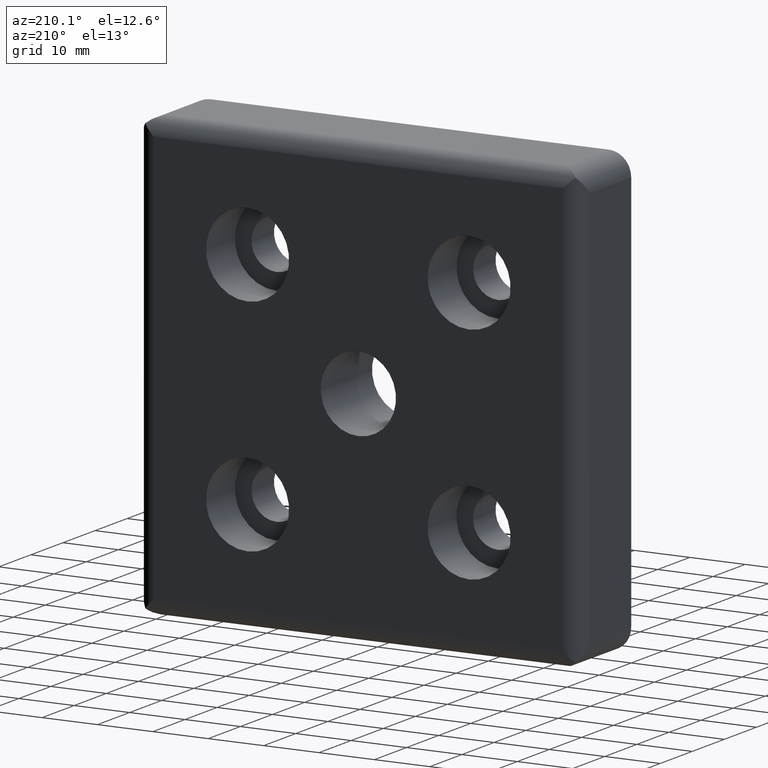
[diagram: clean part render]
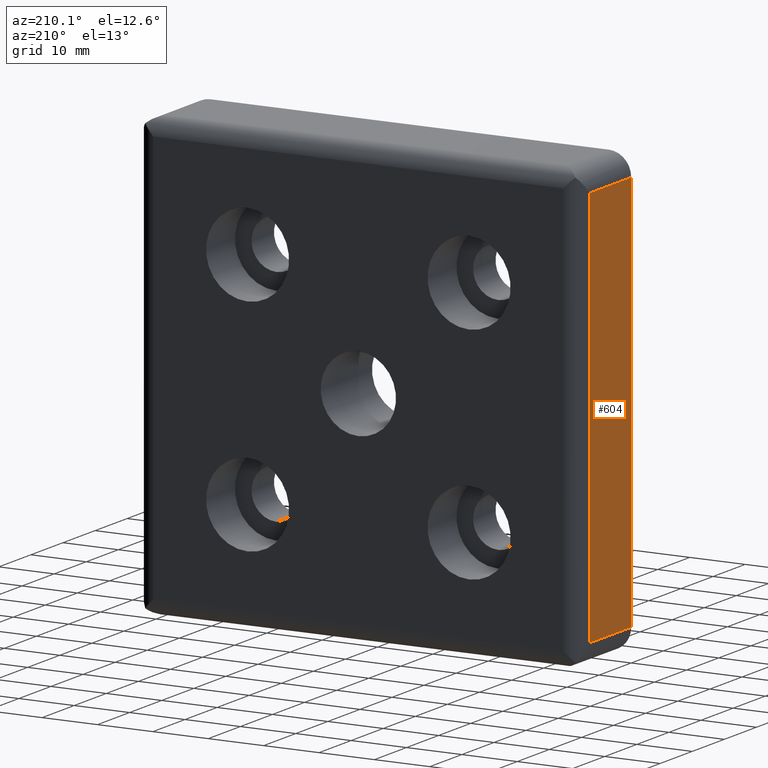
[diagram: same view with one face highlighted and labeled with its STEP entity id]
A machine part, auxiliary view. The second image highlights one B-rep face of the part: STEP entity #604.
In plain terms, the highlighted planar face has unit normal (-1, 0, 0).
Its self-contained STEP definition (entity closure, byte-faithful):
#1 = VERTEX_POINT ( 'NONE', #351 ) ;
#45 = VERTEX_POINT ( 'NONE', #85 ) ;
#85 = CARTESIAN_POINT ( 'NONE',  ( -40.00000000000000000, 0.0000000000000000000, -36.00000000000000700 ) ) ;
#102 = EDGE_CURVE ( 'NONE', #1, #207, #551, .T. ) ;
#113 = LINE ( 'NONE', #155, #193 ) ;
#119 = CARTESIAN_POINT ( 'NONE',  ( -40.00000000000000000, 0.0000000000000000000, 0.0000000000000000000 ) ) ;
#141 = VECTOR ( 'NONE', #292, 1000.000000000000000 ) ;
#155 = CARTESIAN_POINT ( 'NONE',  ( -40.00000000000000000, 13.00000000000000200, 36.00000000000000700 ) ) ;
#189 = DIRECTION ( 'NONE',  ( -0.0000000000000000000, -1.000000000000000000, 0.0000000000000000000 ) ) ;
#193 = VECTOR ( 'NONE', #363, 1000.000000000000000 ) ;
#206 = EDGE_CURVE ( 'NONE', #45, #1, #329, .T. ) ;
#207 = VERTEX_POINT ( 'NONE', #1171 ) ;
#292 = DIRECTION ( 'NONE',  ( 0.0000000000000000000, -0.0000000000000000000, 1.000000000000000000 ) ) ;
#329 = LINE ( 'NONE', #119, #141 ) ;
#351 = CARTESIAN_POINT ( 'NONE',  ( -40.00000000000000000, 0.0000000000000000000, 36.00000000000000700 ) ) ;
#363 = DIRECTION ( 'NONE',  ( -0.0000000000000000000, -0.0000000000000000000, -1.000000000000000000 ) ) ;
#377 = DIRECTION ( 'NONE',  ( -1.000000000000000000, 0.0000000000000000000, 0.0000000000000000000 ) ) ;
#472 = CARTESIAN_POINT ( 'NONE',  ( -39.99999999999999300, 13.00000000000000200, -36.00000000000000700 ) ) ;
#476 = DIRECTION ( 'NONE',  ( 0.0000000000000000000, 0.0000000000000000000, 1.000000000000000000 ) ) ;
#534 = VECTOR ( 'NONE', #189, 1000.000000000000000 ) ;
#551 = LINE ( 'NONE', #562, #1253 ) ;
#562 = CARTESIAN_POINT ( 'NONE',  ( -40.00000000000000000, 0.0000000000000000000, 36.00000000000000700 ) ) ;
#582 = ORIENTED_EDGE ( 'NONE', *, *, #1027, .T. ) ;
#604 = ADVANCED_FACE ( 'NONE', ( #615 ), #659, .T. ) ;
#615 = FACE_OUTER_BOUND ( 'NONE', #1018, .T. ) ;
#640 = ORIENTED_EDGE ( 'NONE', *, *, #206, .T. ) ;
#659 = PLANE ( 'NONE',  #724 ) ;
#722 = LINE ( 'NONE', #867, #534 ) ;
#724 = AXIS2_PLACEMENT_3D ( 'NONE', #1246, #377, #476 ) ;
#867 = CARTESIAN_POINT ( 'NONE',  ( -40.00000000000000000, 0.0000000000000000000, -36.00000000000000700 ) ) ;
#877 = ORIENTED_EDGE ( 'NONE', *, *, #102, .T. ) ;
#957 = DIRECTION ( 'NONE',  ( 0.0000000000000000000, 1.000000000000000000, -0.0000000000000000000 ) ) ;
#965 = ORIENTED_EDGE ( 'NONE', *, *, #1117, .T. ) ;
#1018 = EDGE_LOOP ( 'NONE', ( #640, #877, #582, #965 ) ) ;
#1027 = EDGE_CURVE ( 'NONE', #207, #1201, #113, .T. ) ;
#1117 = EDGE_CURVE ( 'NONE', #1201, #45, #722, .T. ) ;
#1171 = CARTESIAN_POINT ( 'NONE',  ( -39.99999999999999300, 13.00000000000000200, 36.00000000000000700 ) ) ;
#1201 = VERTEX_POINT ( 'NONE', #472 ) ;
#1246 = CARTESIAN_POINT ( 'NONE',  ( -40.00000000000000000, 0.0000000000000000000, 36.00000000000000700 ) ) ;
#1253 = VECTOR ( 'NONE', #957, 1000.000000000000000 ) ;